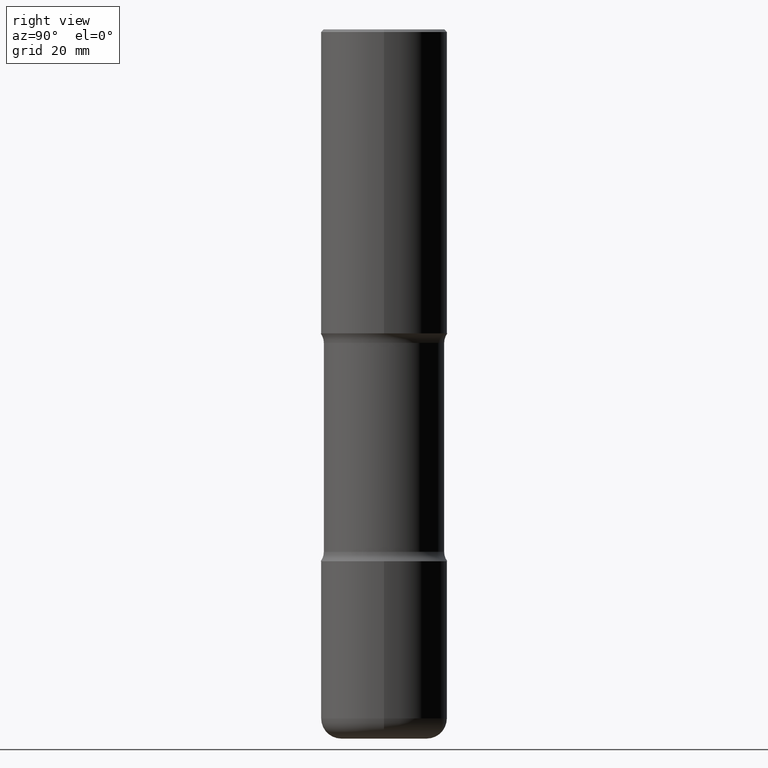
[diagram: clean part render]
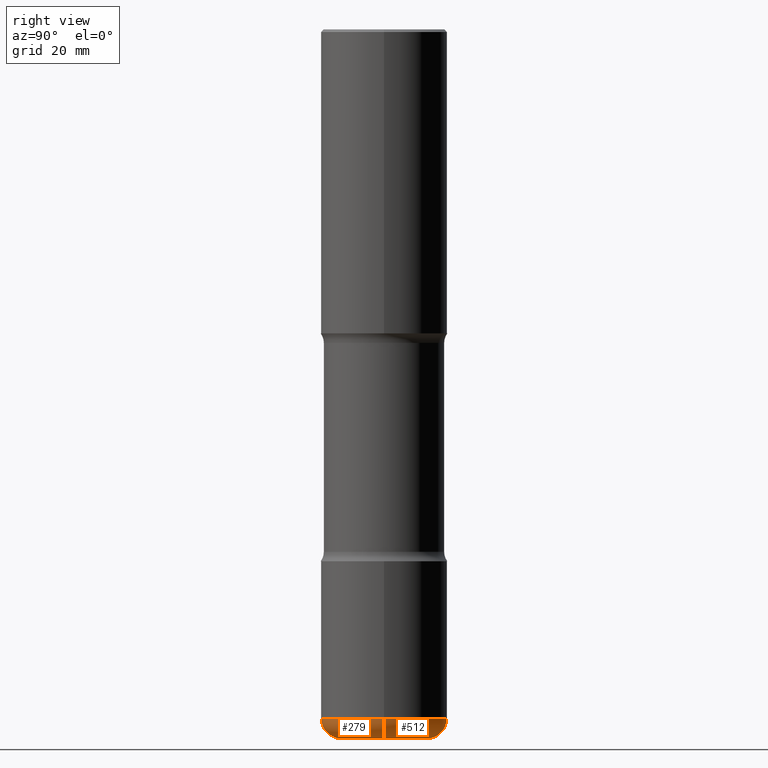
[diagram: same view with one multi-face feature highlighted, each face labeled with its STEP entity id]
A machine part, right view. The highlighted faces form ONE feature: a constant-radius fillet chain: 2 tangent blend faces with common blend radius 4.0005 mm. The faces share edges in the B-rep.
Their STEP definitions:
[1] entity #512 (Torus):
#4 = VERTEX_POINT ( 'NONE', #79 ) ;
#51 = CARTESIAN_POINT ( 'NONE',  ( 0.3346500000000002806, -2.158119530352335944E-14, -5.511800000000000033 ) ) ;
#52 = CARTESIAN_POINT ( 'NONE',  ( 1.309377362895707575E-28, -1.869443853256785386E-14, -5.354300000000000281 ) ) ;
#61 = CARTESIAN_POINT ( 'NONE',  ( -0.3346500000000002806, -1.631660726734667620E-14, -5.354300000000000281 ) ) ;
#63 = DIRECTION ( 'NONE',  ( -1.000000000000000000, 7.105427357601005014E-15, 0.000000000000000000 ) ) ;
#69 = CIRCLE ( 'NONE', #190, 0.1574999999999998346 ) ;
#70 = ORIENTED_EDGE ( 'NONE', *, *, #288, .F. ) ;
#79 = CARTESIAN_POINT ( 'NONE',  ( 0.4921500000000002539, -2.213110361439115437E-14, -5.354300000000000281 ) ) ;
#97 = CARTESIAN_POINT ( 'NONE',  ( -0.3346500000000002806, -1.603200901836949407E-14, -5.511800000000000033 ) ) ;
#114 = VERTEX_POINT ( 'NONE', #97 ) ;
#123 = ORIENTED_EDGE ( 'NONE', *, *, #551, .F. ) ;
#127 = CARTESIAN_POINT ( 'NONE',  ( 1.347893496593123646E-28, -1.924434684343564878E-14, -5.511800000000000033 ) ) ;
#148 = EDGE_LOOP ( 'NONE', ( #232, #451, #70, #123 ) ) ;
#151 = DIRECTION ( 'NONE',  ( -6.982962677686266711E-15, -1.000000000000000000, 3.491481338843145583E-15 ) ) ;
#177 = DIRECTION ( 'NONE',  ( 7.105427357601001859E-15, 1.000000000000000000, -3.491481338843145583E-15 ) ) ;
#190 = AXIS2_PLACEMENT_3D ( 'NONE', #280, #151, #237 ) ;
#192 = DIRECTION ( 'NONE',  ( -2.445468806185136597E-29, 3.491481338843145583E-15, 1.000000000000000000 ) ) ;
#211 = VERTEX_POINT ( 'NONE', #51 ) ;
#224 = EDGE_CURVE ( 'NONE', #211, #114, #347, .T. ) ;
#232 = ORIENTED_EDGE ( 'NONE', *, *, #224, .T. ) ;
#237 = DIRECTION ( 'NONE',  ( 1.000000000000000000, -6.982962677686269866E-15, 0.000000000000000000 ) ) ;
#259 = AXIS2_PLACEMENT_3D ( 'NONE', #127, #388, #513 ) ;
#261 = FACE_OUTER_BOUND ( 'NONE', #148, .T. ) ;
#280 = CARTESIAN_POINT ( 'NONE',  ( 0.3346500000000002806, -2.103128699265556452E-14, -5.354300000000000281 ) ) ;
#288 = EDGE_CURVE ( 'NONE', #4, #461, #559, .T. ) ;
#297 = AXIS2_PLACEMENT_3D ( 'NONE', #52, #192, #315 ) ;
#303 = DIRECTION ( 'NONE',  ( 1.000000000000000000, -6.982962677686269866E-15, 0.000000000000000000 ) ) ;
#307 = AXIS2_PLACEMENT_3D ( 'NONE', #440, #526, #303 ) ;
#315 = DIRECTION ( 'NONE',  ( 1.000000000000000000, -6.982962677686264344E-15, 4.883557194083111780E-29 ) ) ;
#347 = CIRCLE ( 'NONE', #259, 0.3346500000000002806 ) ;
#348 = AXIS2_PLACEMENT_3D ( 'NONE', #61, #177, #63 ) ;
#388 = DIRECTION ( 'NONE',  ( -2.445468806185136597E-29, 3.491481338843145583E-15, 1.000000000000000000 ) ) ;
#406 = EDGE_CURVE ( 'NONE', #114, #461, #487, .T. ) ;
#440 = CARTESIAN_POINT ( 'NONE',  ( 1.309377362895707575E-28, -1.869443853256785386E-14, -5.354300000000000281 ) ) ;
#446 = CARTESIAN_POINT ( 'NONE',  ( -0.4921500000000002539, -1.519750245852451702E-14, -5.354300000000000281 ) ) ;
#451 = ORIENTED_EDGE ( 'NONE', *, *, #406, .T. ) ;
#461 = VERTEX_POINT ( 'NONE', #446 ) ;
#467 = TOROIDAL_SURFACE ( 'NONE', #297, 0.3346500000000002806, 0.1574999999999998346 ) ;
#487 = CIRCLE ( 'NONE', #348, 0.1574999999999998346 ) ;
#512 = ADVANCED_FACE ( 'NONE', ( #261 ), #467, .T. ) ;
#513 = DIRECTION ( 'NONE',  ( 1.000000000000000000, -6.982962677686261977E-15, 0.000000000000000000 ) ) ;
#526 = DIRECTION ( 'NONE',  ( -2.445468806185136597E-29, 3.491481338843145583E-15, 1.000000000000000000 ) ) ;
#551 = EDGE_CURVE ( 'NONE', #211, #4, #69, .T. ) ;
#559 = CIRCLE ( 'NONE', #307, 0.4921500000000003094 ) ;
[2] entity #279 (Torus):
#4 = VERTEX_POINT ( 'NONE', #79 ) ;
#6 = EDGE_CURVE ( 'NONE', #461, #4, #110, .T. ) ;
#28 = AXIS2_PLACEMENT_3D ( 'NONE', #316, #226, #258 ) ;
#35 = DIRECTION ( 'NONE',  ( -2.445468806185136597E-29, 3.491481338843145583E-15, 1.000000000000000000 ) ) ;
#51 = CARTESIAN_POINT ( 'NONE',  ( 0.3346500000000002806, -2.158119530352335944E-14, -5.511800000000000033 ) ) ;
#56 = EDGE_CURVE ( 'NONE', #114, #211, #160, .T. ) ;
#61 = CARTESIAN_POINT ( 'NONE',  ( -0.3346500000000002806, -1.631660726734667620E-14, -5.354300000000000281 ) ) ;
#63 = DIRECTION ( 'NONE',  ( -1.000000000000000000, 7.105427357601005014E-15, 0.000000000000000000 ) ) ;
#69 = CIRCLE ( 'NONE', #190, 0.1574999999999998346 ) ;
#79 = CARTESIAN_POINT ( 'NONE',  ( 0.4921500000000002539, -2.213110361439115437E-14, -5.354300000000000281 ) ) ;
#97 = CARTESIAN_POINT ( 'NONE',  ( -0.3346500000000002806, -1.603200901836949407E-14, -5.511800000000000033 ) ) ;
#110 = CIRCLE ( 'NONE', #135, 0.4921500000000003094 ) ;
#114 = VERTEX_POINT ( 'NONE', #97 ) ;
#129 = ORIENTED_EDGE ( 'NONE', *, *, #56, .T. ) ;
#135 = AXIS2_PLACEMENT_3D ( 'NONE', #518, #251, #240 ) ;
#151 = DIRECTION ( 'NONE',  ( -6.982962677686266711E-15, -1.000000000000000000, 3.491481338843145583E-15 ) ) ;
#160 = CIRCLE ( 'NONE', #372, 0.3346500000000002806 ) ;
#177 = DIRECTION ( 'NONE',  ( 7.105427357601001859E-15, 1.000000000000000000, -3.491481338843145583E-15 ) ) ;
#181 = TOROIDAL_SURFACE ( 'NONE', #28, 0.3346500000000002806, 0.1574999999999998346 ) ;
#190 = AXIS2_PLACEMENT_3D ( 'NONE', #280, #151, #237 ) ;
#211 = VERTEX_POINT ( 'NONE', #51 ) ;
#226 = DIRECTION ( 'NONE',  ( -2.445468806185136597E-29, 3.491481338843145583E-15, 1.000000000000000000 ) ) ;
#237 = DIRECTION ( 'NONE',  ( 1.000000000000000000, -6.982962677686269866E-15, 0.000000000000000000 ) ) ;
#240 = DIRECTION ( 'NONE',  ( 1.000000000000000000, -6.982962677686269866E-15, 0.000000000000000000 ) ) ;
#251 = DIRECTION ( 'NONE',  ( -2.445468806185136597E-29, 3.491481338843145583E-15, 1.000000000000000000 ) ) ;
#258 = DIRECTION ( 'NONE',  ( 1.000000000000000000, -6.982962677686264344E-15, 4.883557194083111780E-29 ) ) ;
#274 = ORIENTED_EDGE ( 'NONE', *, *, #406, .F. ) ;
#279 = ADVANCED_FACE ( 'NONE', ( #537 ), #181, .T. ) ;
#280 = CARTESIAN_POINT ( 'NONE',  ( 0.3346500000000002806, -2.103128699265556452E-14, -5.354300000000000281 ) ) ;
#316 = CARTESIAN_POINT ( 'NONE',  ( 1.309377362895707575E-28, -1.869443853256785386E-14, -5.354300000000000281 ) ) ;
#321 = DIRECTION ( 'NONE',  ( 1.000000000000000000, -6.982962677686261977E-15, 0.000000000000000000 ) ) ;
#335 = ORIENTED_EDGE ( 'NONE', *, *, #6, .F. ) ;
#348 = AXIS2_PLACEMENT_3D ( 'NONE', #61, #177, #63 ) ;
#372 = AXIS2_PLACEMENT_3D ( 'NONE', #453, #35, #321 ) ;
#406 = EDGE_CURVE ( 'NONE', #114, #461, #487, .T. ) ;
#446 = CARTESIAN_POINT ( 'NONE',  ( -0.4921500000000002539, -1.519750245852451702E-14, -5.354300000000000281 ) ) ;
#453 = CARTESIAN_POINT ( 'NONE',  ( 1.347893496593123646E-28, -1.924434684343564878E-14, -5.511800000000000033 ) ) ;
#461 = VERTEX_POINT ( 'NONE', #446 ) ;
#469 = EDGE_LOOP ( 'NONE', ( #274, #129, #514, #335 ) ) ;
#487 = CIRCLE ( 'NONE', #348, 0.1574999999999998346 ) ;
#514 = ORIENTED_EDGE ( 'NONE', *, *, #551, .T. ) ;
#518 = CARTESIAN_POINT ( 'NONE',  ( 1.309377362895707575E-28, -1.869443853256785386E-14, -5.354300000000000281 ) ) ;
#537 = FACE_OUTER_BOUND ( 'NONE', #469, .T. ) ;
#551 = EDGE_CURVE ( 'NONE', #211, #4, #69, .T. ) ;